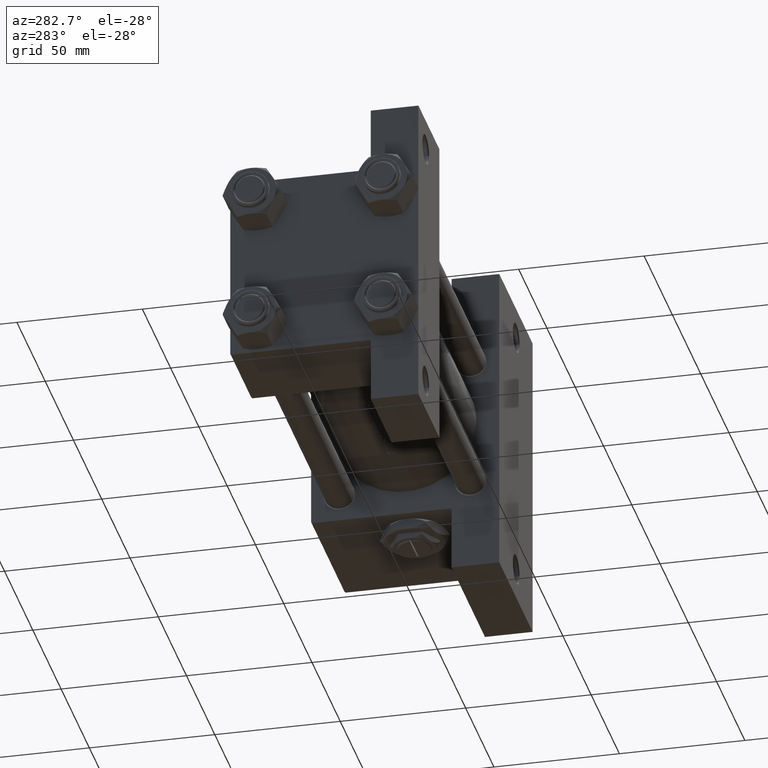
[diagram: clean part render]
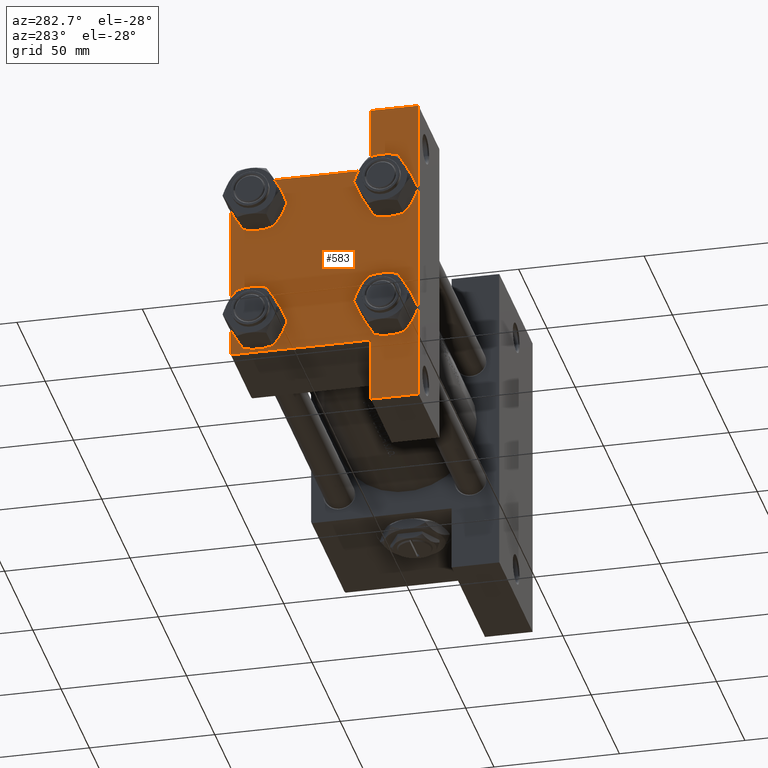
[diagram: same view with one face highlighted and labeled with its STEP entity id]
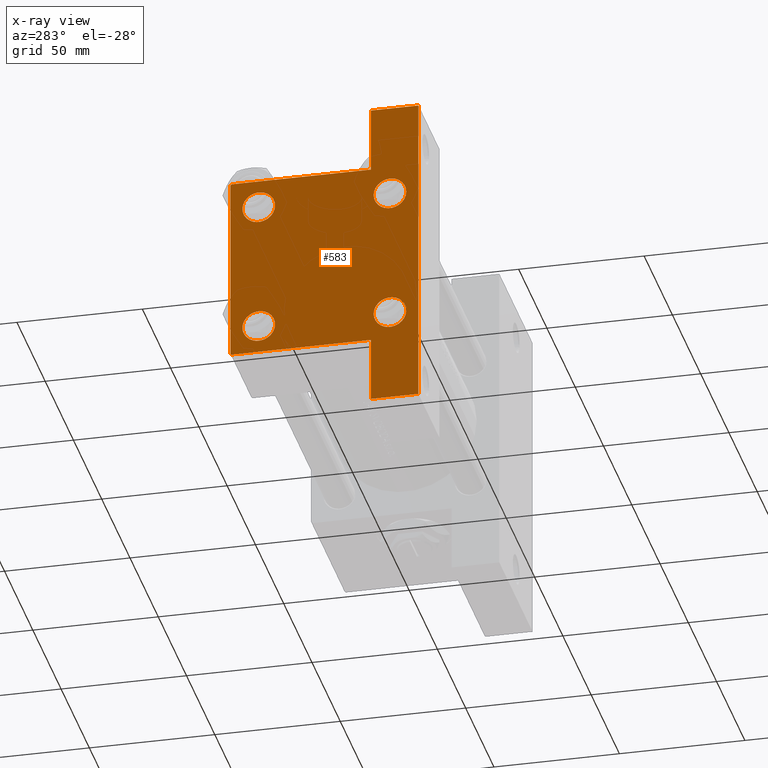
[diagram: x-ray of the same camera — body ghosted, the highlighted face saturated]
A machine part, auxiliary view. The second image highlights one B-rep face of the part: STEP entity #583.
The next image is the same camera in x-ray: the body ghosted, the highlighted face saturated — about 0% of this face is hidden behind the body in this view.
In plain terms, the highlighted planar face has unit normal (-1, 0, -0).
Its self-contained STEP definition (entity closure, byte-faithful):
#583 = ADVANCED_FACE ( 'NONE', ( #46076, #11711, #12435, #11476, #27168 ), #4467, .T. ) ;
#608 = EDGE_CURVE ( 'NONE', #34333, #33623, #22240, .T. ) ;
#646 = EDGE_CURVE ( 'NONE', #35041, #15586, #3148, .T. ) ;
#715 = EDGE_LOOP ( 'NONE', ( #31702, #4809 ) ) ;
#1124 = CARTESIAN_POINT ( 'NONE',  ( 0.000000000000000000, 26.14999999999999858, 26.15000000000000213 ) ) ;
#1164 = CARTESIAN_POINT ( 'NONE',  ( 0.000000000000000000, -26.14999999999999147, -26.15000000000000924 ) ) ;
#1220 = VERTEX_POINT ( 'NONE', #40366 ) ;
#2109 = CARTESIAN_POINT ( 'NONE',  ( 0.000000000000000000, -26.14999999999999147, 26.15000000000000924 ) ) ;
#2348 = EDGE_CURVE ( 'NONE', #33623, #34333, #4750, .T. ) ;
#3148 = CIRCLE ( 'NONE', #42126, 6.500000000000015987 ) ;
#3267 = CARTESIAN_POINT ( 'NONE',  ( 0.000000000000000000, 26.14999999999999858, -32.65000000000001990 ) ) ;
#3309 = EDGE_CURVE ( 'NONE', #7176, #27422, #22833, .T. ) ;
#3580 = ORIENTED_EDGE ( 'NONE', *, *, #33495, .T. ) ;
#3921 = LINE ( 'NONE', #19127, #39948 ) ;
#4244 = CIRCLE ( 'NONE', #9827, 6.500000000000023093 ) ;
#4337 = VERTEX_POINT ( 'NONE', #18459 ) ;
#4467 = PLANE ( 'NONE',  #12656 ) ;
#4750 = CIRCLE ( 'NONE', #8729, 6.500000000000015987 ) ;
#4809 = ORIENTED_EDGE ( 'NONE', *, *, #42659, .T. ) ;
#5225 = CARTESIAN_POINT ( 'NONE',  ( 0.000000000000000000, 26.14999999999999858, 26.15000000000000213 ) ) ;
#6277 = CIRCLE ( 'NONE', #14228, 6.500000000000023093 ) ;
#6790 = VECTOR ( 'NONE', #33701, 1000.000000000000000 ) ;
#7176 = VERTEX_POINT ( 'NONE', #35385 ) ;
#7967 = DIRECTION ( 'NONE',  ( 1.000000000000000000, -0.000000000000000000, 0.000000000000000000 ) ) ;
#8378 = LINE ( 'NONE', #16355, #44371 ) ;
#8405 = LINE ( 'NONE', #39034, #21534 ) ;
#8647 = EDGE_CURVE ( 'NONE', #44185, #18516, #36803, .T. ) ;
#8707 = EDGE_LOOP ( 'NONE', ( #25569, #43150 ) ) ;
#8729 = AXIS2_PLACEMENT_3D ( 'NONE', #1164, #12634, #30587 ) ;
#8764 = ORIENTED_EDGE ( 'NONE', *, *, #42567, .F. ) ;
#8828 = VERTEX_POINT ( 'NONE', #14402 ) ;
#8847 = LINE ( 'NONE', #9096, #27118 ) ;
#8868 = EDGE_CURVE ( 'NONE', #28932, #21658, #3921, .T. ) ;
#8955 = ORIENTED_EDGE ( 'NONE', *, *, #8868, .T. ) ;
#9096 = CARTESIAN_POINT ( 'NONE',  ( 3.977209754999747208E-16, -63.49999999999998579, 26.72167621838007889 ) ) ;
#9591 = DIRECTION ( 'NONE',  ( 0.000000000000000000, 0.000000000000000000, 1.000000000000000000 ) ) ;
#9689 = DIRECTION ( 'NONE',  ( 1.000000000000000000, -0.000000000000000000, 0.000000000000000000 ) ) ;
#9827 = AXIS2_PLACEMENT_3D ( 'NONE', #39078, #20667, #35579 ) ;
#11078 = CARTESIAN_POINT ( 'NONE',  ( 0.000000000000000000, 37.49999999999999289, 37.00000000000000000 ) ) ;
#11476 = FACE_BOUND ( 'NONE', #33494, .T. ) ;
#11711 = FACE_BOUND ( 'NONE', #43362, .T. ) ;
#11989 = CARTESIAN_POINT ( 'NONE',  ( 1.595073532467135441E-14, 63.50000000000000000, -18.50000000000000355 ) ) ;
#12084 = EDGE_CURVE ( 'NONE', #37523, #1220, #4244, .T. ) ;
#12435 = FACE_BOUND ( 'NONE', #8707, .T. ) ;
#12601 = LINE ( 'NONE', #23593, #15740 ) ;
#12634 = DIRECTION ( 'NONE',  ( 1.000000000000000000, -0.000000000000000000, 0.000000000000000000 ) ) ;
#12656 = AXIS2_PLACEMENT_3D ( 'NONE', #26922, #23916, #35090 ) ;
#12695 = ORIENTED_EDGE ( 'NONE', *, *, #41600, .T. ) ;
#12792 = CARTESIAN_POINT ( 'NONE',  ( 0.000000000000000000, 37.49999999999999289, 37.50000000000000000 ) ) ;
#12852 = DIRECTION ( 'NONE',  ( 0.000000000000000000, -1.734723475976806848E-16, -1.000000000000000000 ) ) ;
#13188 = DIRECTION ( 'NONE',  ( 0.000000000000000000, 0.000000000000000000, 1.000000000000000000 ) ) ;
#13332 = VERTEX_POINT ( 'NONE', #36106 ) ;
#13390 = VECTOR ( 'NONE', #34712, 1000.000000000000000 ) ;
#14228 = AXIS2_PLACEMENT_3D ( 'NONE', #5225, #32126, #47323 ) ;
#14402 = CARTESIAN_POINT ( 'NONE',  ( 0.000000000000000000, -37.50000000000000711, 36.99999999999999289 ) ) ;
#14962 = CARTESIAN_POINT ( 'NONE',  ( 1.595073532467135441E-14, 63.50000000000000000, -37.50000000000002132 ) ) ;
#15586 = VERTEX_POINT ( 'NONE', #3267 ) ;
#15607 = CARTESIAN_POINT ( 'NONE',  ( 0.000000000000000000, -37.00000000000000711, 37.49999999999999289 ) ) ;
#15740 = VECTOR ( 'NONE', #12852, 1000.000000000000000 ) ;
#16192 = CARTESIAN_POINT ( 'NONE',  ( 0.000000000000000000, -26.14999999999999147, -26.15000000000000924 ) ) ;
#16355 = CARTESIAN_POINT ( 'NONE',  ( 0.000000000000000000, 37.49999999999999289, 37.50000000000000000 ) ) ;
#16390 = DIRECTION ( 'NONE',  ( -0.000000000000000000, 0.7071067811865474617, 0.7071067811865474617 ) ) ;
#16582 = DIRECTION ( 'NONE',  ( 1.000000000000000000, -0.000000000000000000, 0.000000000000000000 ) ) ;
#17175 = CARTESIAN_POINT ( 'NONE',  ( 1.595073532467135757E-14, 63.50000000000001421, -18.50000000000000355 ) ) ;
#17410 = CARTESIAN_POINT ( 'NONE',  ( 0.000000000000000000, 26.14999999999999858, 32.65000000000002700 ) ) ;
#18459 = CARTESIAN_POINT ( 'NONE',  ( 3.977209754999747208E-16, -63.50000000000000000, -18.50000000000000355 ) ) ;
#18516 = VERTEX_POINT ( 'NONE', #39955 ) ;
#19127 = CARTESIAN_POINT ( 'NONE',  ( 0.000000000000000000, 37.49999999999999289, -37.50000000000000000 ) ) ;
#19540 = CARTESIAN_POINT ( 'NONE',  ( 3.977209754999744250E-16, -63.49999999999998579, -18.50000000000000355 ) ) ;
#20103 = DIRECTION ( 'NONE',  ( 0.000000000000000000, 0.000000000000000000, 1.000000000000000000 ) ) ;
#20487 = ORIENTED_EDGE ( 'NONE', *, *, #8647, .F. ) ;
#20667 = DIRECTION ( 'NONE',  ( 1.000000000000000000, -0.000000000000000000, 0.000000000000000000 ) ) ;
#21534 = VECTOR ( 'NONE', #16390, 1000.000000000000114 ) ;
#21557 = EDGE_CURVE ( 'NONE', #8828, #38641, #29966, .T. ) ;
#21658 = VERTEX_POINT ( 'NONE', #38662 ) ;
#21709 = ORIENTED_EDGE ( 'NONE', *, *, #3309, .T. ) ;
#22112 = CARTESIAN_POINT ( 'NONE',  ( -7.145701223179004046E-16, -37.50000000000000711, -18.50000000000000355 ) ) ;
#22240 = CIRCLE ( 'NONE', #45291, 6.500000000000015987 ) ;
#22833 = LINE ( 'NONE', #25828, #36601 ) ;
#23004 = CIRCLE ( 'NONE', #35688, 6.500000000000023093 ) ;
#23593 = CARTESIAN_POINT ( 'NONE',  ( 1.595073532467135441E-14, 63.50000000000001421, 26.72167621838005047 ) ) ;
#23916 = DIRECTION ( 'NONE',  ( -1.000000000000000000, 0.000000000000000000, -0.000000000000000000 ) ) ;
#23986 = ORIENTED_EDGE ( 'NONE', *, *, #608, .T. ) ;
#24022 = LINE ( 'NONE', #19540, #13390 ) ;
#24263 = DIRECTION ( 'NONE',  ( 0.000000000000000000, -1.000000000000000000, -9.251858538542971581E-17 ) ) ;
#24409 = CARTESIAN_POINT ( 'NONE',  ( 0.000000000000000000, 26.14999999999999858, -26.15000000000000213 ) ) ;
#25167 = ORIENTED_EDGE ( 'NONE', *, *, #27290, .T. ) ;
#25376 = DIRECTION ( 'NONE',  ( -2.877097866686192789E-16, -1.000000000000000000, 0.000000000000000000 ) ) ;
#25537 = AXIS2_PLACEMENT_3D ( 'NONE', #2109, #29014, #9591 ) ;
#25569 = ORIENTED_EDGE ( 'NONE', *, *, #646, .T. ) ;
#25828 = CARTESIAN_POINT ( 'NONE',  ( 0.000000000000000000, 37.24999999999999289, 37.24999999999999289 ) ) ;
#26922 = CARTESIAN_POINT ( 'NONE',  ( 0.000000000000000000, 0.000000000000000000, 0.000000000000000000 ) ) ;
#27118 = VECTOR ( 'NONE', #37818, 1000.000000000000000 ) ;
#27168 = FACE_OUTER_BOUND ( 'NONE', #42279, .T. ) ;
#27290 = EDGE_CURVE ( 'NONE', #44185, #28932, #12601, .T. ) ;
#27422 = VERTEX_POINT ( 'NONE', #11078 ) ;
#27578 = EDGE_CURVE ( 'NONE', #38641, #4337, #24022, .T. ) ;
#28932 = VERTEX_POINT ( 'NONE', #14962 ) ;
#29014 = DIRECTION ( 'NONE',  ( 1.000000000000000000, -0.000000000000000000, 0.000000000000000000 ) ) ;
#29793 = DIRECTION ( 'NONE',  ( 0.000000000000000000, 0.7071067811865474617, -0.7071067811865474617 ) ) ;
#29966 = LINE ( 'NONE', #30713, #6790 ) ;
#30587 = DIRECTION ( 'NONE',  ( 0.000000000000000000, 0.000000000000000000, 1.000000000000000000 ) ) ;
#30713 = CARTESIAN_POINT ( 'NONE',  ( 0.000000000000000000, -37.50000000000000711, 37.49999999999999289 ) ) ;
#31068 = AXIS2_PLACEMENT_3D ( 'NONE', #47233, #32036, #20103 ) ;
#31403 = ORIENTED_EDGE ( 'NONE', *, *, #27578, .F. ) ;
#31702 = ORIENTED_EDGE ( 'NONE', *, *, #12084, .T. ) ;
#31705 = CARTESIAN_POINT ( 'NONE',  ( 0.000000000000000000, 26.14999999999999858, -19.64999999999998792 ) ) ;
#31757 = DIRECTION ( 'NONE',  ( 0.000000000000000000, 0.000000000000000000, 1.000000000000000000 ) ) ;
#32036 = DIRECTION ( 'NONE',  ( 1.000000000000000000, -0.000000000000000000, 0.000000000000000000 ) ) ;
#32126 = DIRECTION ( 'NONE',  ( 1.000000000000000000, -0.000000000000000000, 0.000000000000000000 ) ) ;
#32593 = DIRECTION ( 'NONE',  ( 0.000000000000000000, 0.000000000000000000, 1.000000000000000000 ) ) ;
#32720 = VERTEX_POINT ( 'NONE', #15607 ) ;
#33037 = EDGE_CURVE ( 'NONE', #36617, #13332, #6277, .T. ) ;
#33319 = CARTESIAN_POINT ( 'NONE',  ( 0.000000000000000000, -26.14999999999999147, 32.65000000000003411 ) ) ;
#33494 = EDGE_LOOP ( 'NONE', ( #36431, #3580 ) ) ;
#33495 = EDGE_CURVE ( 'NONE', #13332, #36617, #23004, .T. ) ;
#33623 = VERTEX_POINT ( 'NONE', #38440 ) ;
#33701 = DIRECTION ( 'NONE',  ( 0.000000000000000000, 9.251858538542971581E-17, -1.000000000000000000 ) ) ;
#34333 = VERTEX_POINT ( 'NONE', #35997 ) ;
#34712 = DIRECTION ( 'NONE',  ( 4.278042683914906889E-17, -1.000000000000000000, 0.000000000000000000 ) ) ;
#34963 = EDGE_CURVE ( 'NONE', #7176, #32720, #39926, .T. ) ;
#35041 = VERTEX_POINT ( 'NONE', #31705 ) ;
#35090 = DIRECTION ( 'NONE',  ( -0.000000000000000000, 0.000000000000000000, 1.000000000000000000 ) ) ;
#35385 = CARTESIAN_POINT ( 'NONE',  ( 0.000000000000000000, 36.99999999999999289, 37.50000000000000000 ) ) ;
#35520 = EDGE_CURVE ( 'NONE', #27422, #18516, #8378, .T. ) ;
#35579 = DIRECTION ( 'NONE',  ( 0.000000000000000000, 0.000000000000000000, 1.000000000000000000 ) ) ;
#35688 = AXIS2_PLACEMENT_3D ( 'NONE', #1124, #16582, #31757 ) ;
#35997 = CARTESIAN_POINT ( 'NONE',  ( 0.000000000000000000, -26.14999999999999147, -19.64999999999999503 ) ) ;
#36106 = CARTESIAN_POINT ( 'NONE',  ( 0.000000000000000000, 26.14999999999999858, 19.64999999999998437 ) ) ;
#36431 = ORIENTED_EDGE ( 'NONE', *, *, #33037, .T. ) ;
#36601 = VECTOR ( 'NONE', #29793, 1000.000000000000114 ) ;
#36617 = VERTEX_POINT ( 'NONE', #17410 ) ;
#36803 = LINE ( 'NONE', #17175, #46279 ) ;
#37523 = VERTEX_POINT ( 'NONE', #33319 ) ;
#37818 = DIRECTION ( 'NONE',  ( 0.000000000000000000, -1.734723475976806848E-16, -1.000000000000000000 ) ) ;
#38440 = CARTESIAN_POINT ( 'NONE',  ( 0.000000000000000000, -26.14999999999999147, -32.65000000000002700 ) ) ;
#38641 = VERTEX_POINT ( 'NONE', #22112 ) ;
#38662 = CARTESIAN_POINT ( 'NONE',  ( 3.977209754999747208E-16, -63.50000000000000000, -37.49999999999999289 ) ) ;
#39034 = CARTESIAN_POINT ( 'NONE',  ( -0.000000000000000000, -37.25000000000000000, 37.25000000000000000 ) ) ;
#39078 = CARTESIAN_POINT ( 'NONE',  ( 0.000000000000000000, -26.14999999999999147, 26.15000000000000924 ) ) ;
#39846 = ORIENTED_EDGE ( 'NONE', *, *, #21557, .F. ) ;
#39926 = LINE ( 'NONE', #12792, #46714 ) ;
#39948 = VECTOR ( 'NONE', #43007, 1000.000000000000000 ) ;
#39955 = CARTESIAN_POINT ( 'NONE',  ( 0.000000000000000000, 37.49999999999999289, -18.49999999999999645 ) ) ;
#40366 = CARTESIAN_POINT ( 'NONE',  ( 0.000000000000000000, -26.14999999999999147, 19.64999999999999147 ) ) ;
#40909 = ORIENTED_EDGE ( 'NONE', *, *, #2348, .T. ) ;
#41600 = EDGE_CURVE ( 'NONE', #8828, #32720, #8405, .T. ) ;
#42126 = AXIS2_PLACEMENT_3D ( 'NONE', #24409, #9689, #13188 ) ;
#42279 = EDGE_LOOP ( 'NONE', ( #39846, #12695, #45904, #21709, #47617, #20487, #25167, #8955, #8764, #31403 ) ) ;
#42567 = EDGE_CURVE ( 'NONE', #4337, #21658, #8847, .T. ) ;
#42659 = EDGE_CURVE ( 'NONE', #1220, #37523, #47007, .T. ) ;
#42745 = DIRECTION ( 'NONE',  ( 0.000000000000000000, 0.000000000000000000, -1.000000000000000000 ) ) ;
#43007 = DIRECTION ( 'NONE',  ( 0.000000000000000000, -1.000000000000000000, -9.251858538542972814E-17 ) ) ;
#43150 = ORIENTED_EDGE ( 'NONE', *, *, #45780, .T. ) ;
#43362 = EDGE_LOOP ( 'NONE', ( #23986, #40909 ) ) ;
#44185 = VERTEX_POINT ( 'NONE', #11989 ) ;
#44371 = VECTOR ( 'NONE', #42745, 1000.000000000000000 ) ;
#45291 = AXIS2_PLACEMENT_3D ( 'NONE', #16192, #7967, #32593 ) ;
#45780 = EDGE_CURVE ( 'NONE', #15586, #35041, #46963, .T. ) ;
#45904 = ORIENTED_EDGE ( 'NONE', *, *, #34963, .F. ) ;
#46076 = FACE_BOUND ( 'NONE', #715, .T. ) ;
#46279 = VECTOR ( 'NONE', #25376, 1000.000000000000000 ) ;
#46714 = VECTOR ( 'NONE', #24263, 1000.000000000000000 ) ;
#46963 = CIRCLE ( 'NONE', #31068, 6.500000000000015987 ) ;
#47007 = CIRCLE ( 'NONE', #25537, 6.500000000000023093 ) ;
#47233 = CARTESIAN_POINT ( 'NONE',  ( 0.000000000000000000, 26.14999999999999858, -26.15000000000000213 ) ) ;
#47323 = DIRECTION ( 'NONE',  ( 0.000000000000000000, 0.000000000000000000, 1.000000000000000000 ) ) ;
#47617 = ORIENTED_EDGE ( 'NONE', *, *, #35520, .T. ) ;